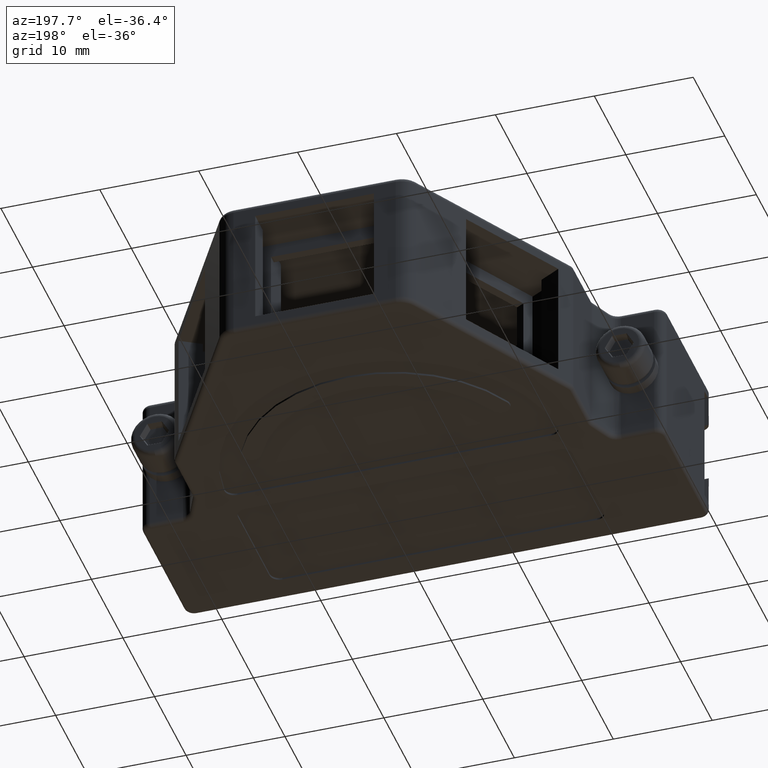
[diagram: clean part render]
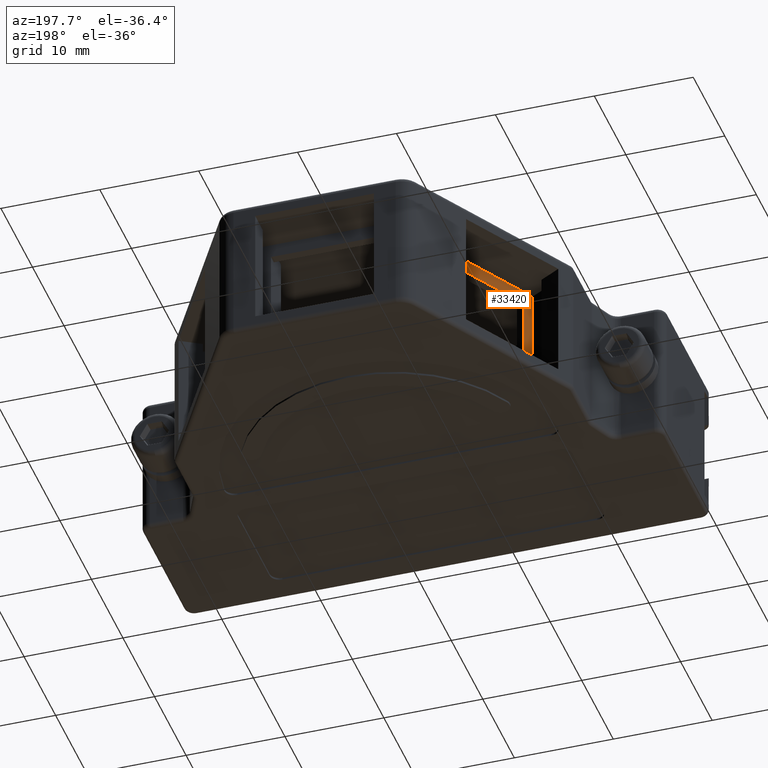
[diagram: same view with one face highlighted and labeled with its STEP entity id]
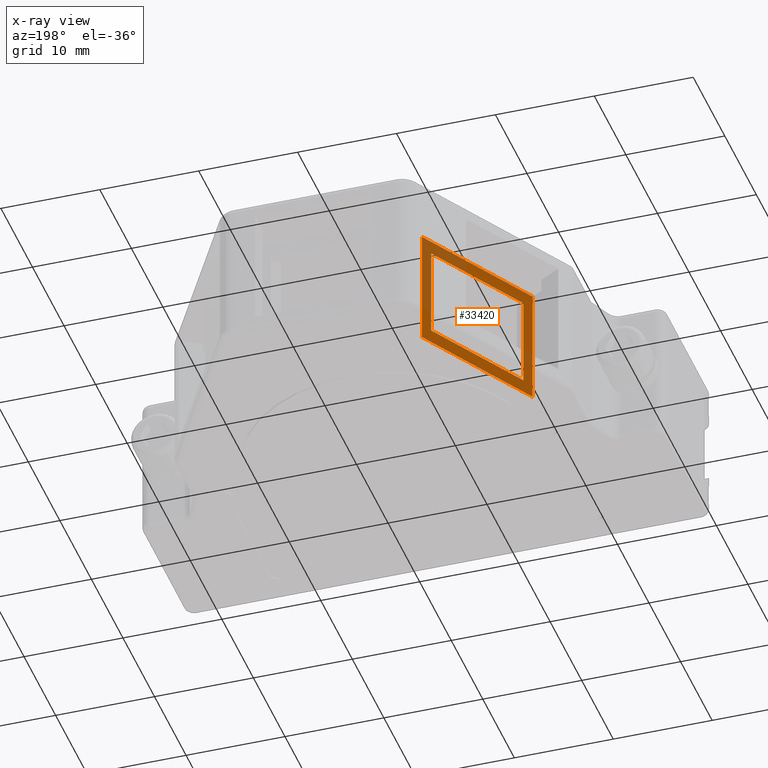
[diagram: x-ray of the same camera — body ghosted, the highlighted face saturated]
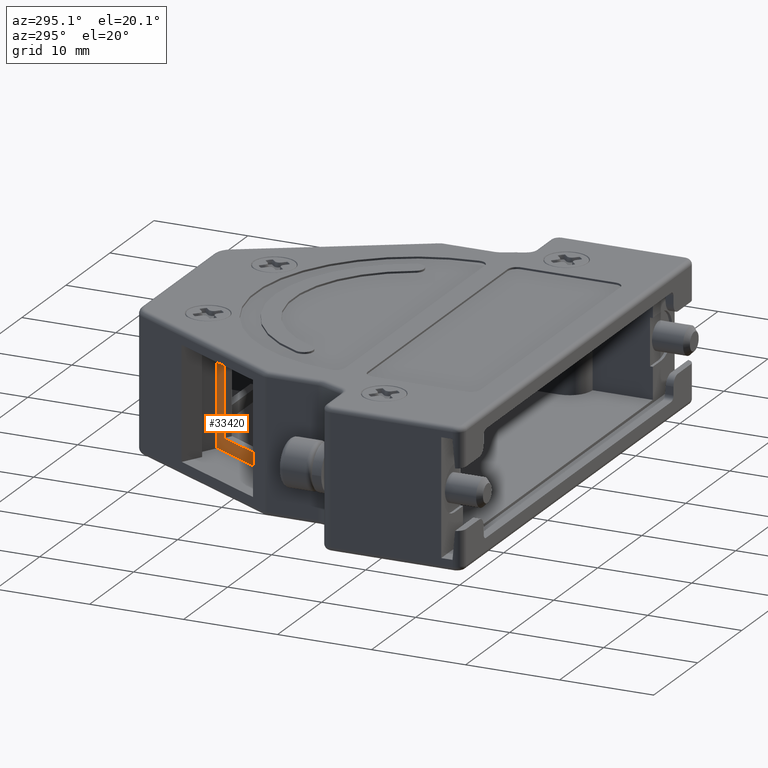
[diagram: same view with one face highlighted and labeled with its STEP entity id]
A machine part, auxiliary view. The second image highlights one B-rep face of the part: STEP entity #33420.
The next image is the same camera in x-ray: the body ghosted, the highlighted face saturated — about 30% of this face is hidden behind the body in this view.
A second angle (auxiliary view) of the same face is appended — the face is thin or edge-on in the first view.
In plain terms, the highlighted planar face has unit normal (-0.866, 0.5, 0).
Its self-contained STEP definition (entity closure, byte-faithful):
#60=CARTESIAN_POINT('',(22.1423739063185,0.,-32.));
#70=DIRECTION('',(0.5,0.866025403784439,0.));
#80=VECTOR('',#70,1.);
#90=LINE('',#60,#80);
#100=CARTESIAN_POINT('',(35.1301270189222,22.4954482671904,-32.));
#110=VERTEX_POINT('',#100);
#120=CARTESIAN_POINT('',(41.1301270189222,32.8877531126037,-32.));
#130=VERTEX_POINT('',#120);
#140=EDGE_CURVE('',#110,#130,#90,.T.);
#570=CARTESIAN_POINT('',(35.1301270189222,22.4954482671904,-22.8));
#580=VERTEX_POINT('',#570);
#630=CARTESIAN_POINT('',(35.1301270189222,22.4954482671904,0.));
#640=DIRECTION('',(0.,0.,-1.));
#650=VECTOR('',#640,1.);
#660=LINE('',#630,#650);
#670=EDGE_CURVE('',#580,#110,#660,.T.);
#1360=CARTESIAN_POINT('',(41.1301270189222,32.8877531126037,-22.8));
#1370=VERTEX_POINT('',#1360);
#1400=CARTESIAN_POINT('',(22.1423739063185,0.,-22.8));
#1410=DIRECTION('',(0.5,0.866025403784439,0.));
#1420=VECTOR('',#1410,1.);
#1430=LINE('',#1400,#1420);
#1440=EDGE_CURVE('',#580,#1370,#1430,.T.);
#31310=CARTESIAN_POINT('',(41.7301270189222,33.926983597145,-33.4));
#31320=VERTEX_POINT('',#31310);
#31350=CARTESIAN_POINT('',(22.1423739063185,0.,-33.4));
#31360=DIRECTION('',(0.5,0.866025403784439,0.));
#31370=VECTOR('',#31360,1.);
#31380=LINE('',#31350,#31370);
#31390=CARTESIAN_POINT('',(34.5301270189222,21.4562177826491,-33.4));
#31400=VERTEX_POINT('',#31390);
#31410=EDGE_CURVE('',#31400,#31320,#31380,.T.);
#32390=CARTESIAN_POINT('',(41.7301270189222,33.926983597145,-21.4));
#32400=VERTEX_POINT('',#32390);
#32430=CARTESIAN_POINT('',(41.7301270189222,33.926983597145,0.));
#32440=DIRECTION('',(0.,0.,-1.));
#32450=VECTOR('',#32440,1.);
#32460=LINE('',#32430,#32450);
#32470=EDGE_CURVE('',#32400,#31320,#32460,.T.);
#33080=CARTESIAN_POINT('',(41.1301270189222,32.8877531126037,-27.4));
#33090=DIRECTION('',(-0.866025403784439,0.5,0.));
#33100=DIRECTION('',(0.5,0.866025403784439,0.));
#33110=AXIS2_PLACEMENT_3D('',#33080,#33090,#33100);
#33120=PLANE('',#33110);
#33130=ORIENTED_EDGE('',*,*,#140,.T.);
#33140=ORIENTED_EDGE('',*,*,#670,.T.);
#33150=ORIENTED_EDGE('',*,*,#1440,.F.);
#33160=CARTESIAN_POINT('',(41.1301270189222,32.8877531126037,0.));
#33170=DIRECTION('',(0.,0.,1.));
#33180=VECTOR('',#33170,1.);
#33190=LINE('',#33160,#33180);
#33200=EDGE_CURVE('',#130,#1370,#33190,.T.);
#33210=ORIENTED_EDGE('',*,*,#33200,.T.);
#33220=EDGE_LOOP('',(#33210,#33150,#33140,#33130));
#33230=FACE_BOUND('',#33220,.T.);
#33240=CARTESIAN_POINT('',(22.1423739063185,0.,-21.4));
#33250=DIRECTION('',(0.5,0.866025403784439,0.));
#33260=VECTOR('',#33250,1.);
#33270=LINE('',#33240,#33260);
#33280=CARTESIAN_POINT('',(34.5301270189222,21.4562177826491,-21.4));
#33290=VERTEX_POINT('',#33280);
#33300=EDGE_CURVE('',#33290,#32400,#33270,.T.);
#33310=ORIENTED_EDGE('',*,*,#33300,.T.);
#33320=CARTESIAN_POINT('',(34.5301270189222,21.4562177826491,0.));
#33330=DIRECTION('',(0.,0.,-1.));
#33340=VECTOR('',#33330,1.);
#33350=LINE('',#33320,#33340);
#33360=EDGE_CURVE('',#33290,#31400,#33350,.T.);
#33370=ORIENTED_EDGE('',*,*,#33360,.F.);
#33380=ORIENTED_EDGE('',*,*,#31410,.F.);
#33390=ORIENTED_EDGE('',*,*,#32470,.T.);
#33400=EDGE_LOOP('',(#33390,#33380,#33370,#33310));
#33410=FACE_OUTER_BOUND('',#33400,.T.);
#33420=ADVANCED_FACE('',(#33230,#33410),#33120,.T.);